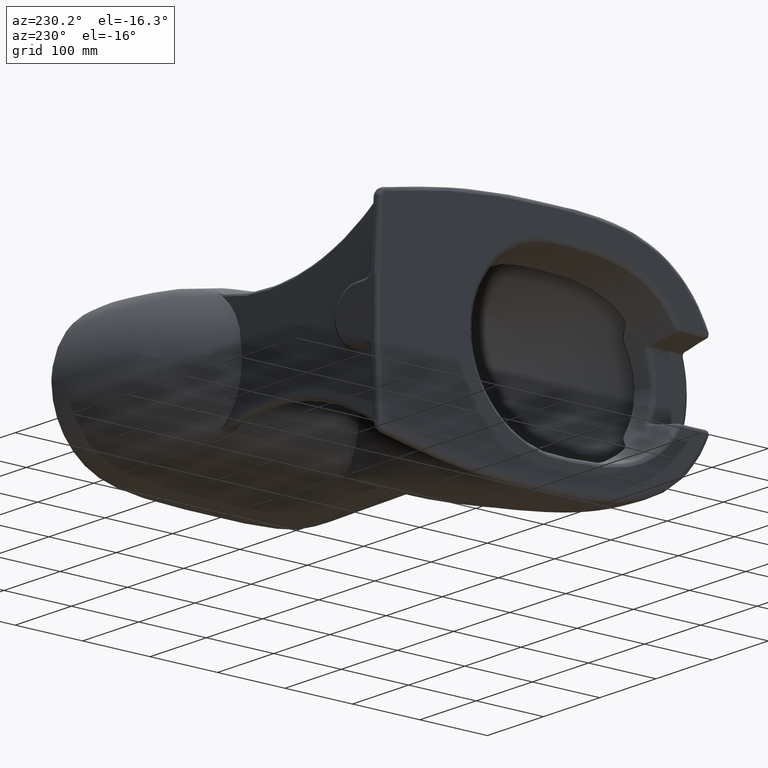
[diagram: clean part render]
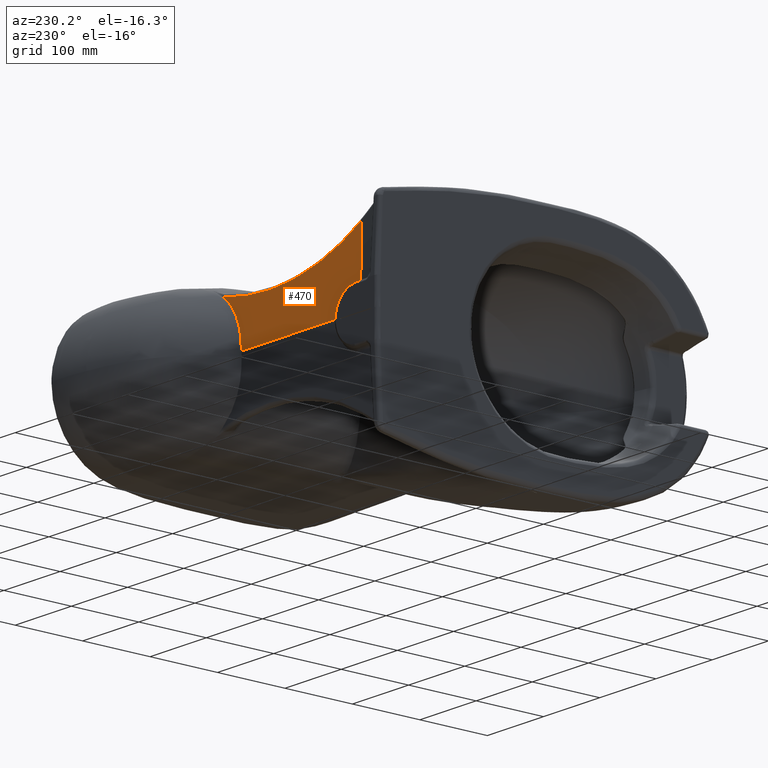
[diagram: same view with one face highlighted and labeled with its STEP entity id]
A machine part, auxiliary view. The second image highlights one B-rep face of the part: STEP entity #470.
In plain terms, the highlighted planar face has unit normal (0, 0.9998, 0.0175).
Its self-contained STEP definition (entity closure, byte-faithful):
#129=PLANE('',#4727);
#169=LINE('',#22949,#220);
#171=LINE('',#25905,#222);
#220=VECTOR('',#4795,1.);
#222=VECTOR('',#4799,1.);
#470=ADVANCED_FACE('',(#946),#129,.T.);
#946=FACE_OUTER_BOUND('',#1243,.T.);
#1243=EDGE_LOOP('',(#1751,#1752,#1753,#1754,#1755,#1756));
#1751=ORIENTED_EDGE('',*,*,#3568,.T.);
#1752=ORIENTED_EDGE('',*,*,#3570,.F.);
#1753=ORIENTED_EDGE('',*,*,#3571,.F.);
#1754=ORIENTED_EDGE('',*,*,#3510,.T.);
#1755=ORIENTED_EDGE('',*,*,#3459,.T.);
#1756=ORIENTED_EDGE('',*,*,#3572,.F.);
#2995=VERTEX_POINT('',#17766);
#2999=VERTEX_POINT('',#17891);
#3032=VERTEX_POINT('',#22950);
#3079=VERTEX_POINT('',#25904);
#3080=VERTEX_POINT('',#25906);
#3081=VERTEX_POINT('',#25922);
#3459=EDGE_CURVE('',#2995,#2999,#4190,.T.);
#3510=EDGE_CURVE('',#3032,#2995,#169,.T.);
#3568=EDGE_CURVE('',#3080,#3079,#171,.T.);
#3570=EDGE_CURVE('',#3081,#3079,#4290,.T.);
#3571=EDGE_CURVE('',#3032,#3081,#4291,.T.);
#3572=EDGE_CURVE('',#3080,#2999,#4292,.T.);
#4190=B_SPLINE_CURVE_WITH_KNOTS('',3,(#17893,#17894,#17895,#17896,#17897,
#17898,#17899,#17900,#17901,#17902,#17903,#17904,#17905,#17906),
 .UNSPECIFIED.,.F.,.F.,(4,2,2,2,2,2,4),(0.,0.25,0.499999999999999,0.624999999999999,
0.687499999999999,0.749999999999999,1.),.UNSPECIFIED.);
#4290=B_SPLINE_CURVE_WITH_KNOTS('',3,(#25912,#25913,#25914,#25915,#25916,
#25917,#25918,#25919,#25920,#25921),.UNSPECIFIED.,.F.,.F.,(4,2,2,2,4),(0.,
0.25,0.5,0.75,1.),.UNSPECIFIED.);
#4291=B_SPLINE_CURVE_WITH_KNOTS('',3,(#25923,#25924,#25925,#25926),
 .UNSPECIFIED.,.F.,.F.,(4,4),(0.,1.),.UNSPECIFIED.);
#4292=B_SPLINE_CURVE_WITH_KNOTS('',3,(#25927,#25928,#25929,#25930,#25931,
#25932,#25933,#25934,#25935,#25936,#25937,#25938,#25939,#25940),
 .UNSPECIFIED.,.F.,.F.,(4,1,1,1,1,1,1,1,1,1,1,4),(0.,0.0590010885592985,
0.118161541450601,0.158836409745205,0.269592759830424,0.381425443861726,
0.509339725498321,0.605875669447375,0.703070853969138,0.801088354097183,
0.899994929203377,1.),.UNSPECIFIED.);
#4727=AXIS2_PLACEMENT_3D('',#25941,#4802,#4803);
#4795=DIRECTION('',(0.,-0.0174524064372837,0.999847695156391));
#4799=DIRECTION('',(-1.,0.,0.));
#4802=DIRECTION('',(0.,0.999847695156391,0.0174524064372836));
#4803=DIRECTION('',(0.,0.0174524064372836,-0.999847695156391));
#17766=CARTESIAN_POINT('',(-434.000705781901,-1.98071434558298,-694.686010868631));
#17891=CARTESIAN_POINT('',(-187.830083627952,-1.35257541668296,-730.431612374871));
#17893=CARTESIAN_POINT('',(-434.000705781625,-1.98071434559087,-694.686010868179));
#17894=CARTESIAN_POINT('',(-415.74181751074,-1.78655932120744,-705.809144765525));
#17895=CARTESIAN_POINT('',(-396.597395491934,-1.62653648659861,-714.97684682031));
#17896=CARTESIAN_POINT('',(-356.33665414286,-1.37350930466226,-729.472764364983));
#17897=CARTESIAN_POINT('',(-335.663230197468,-1.2833772304254,-734.636427439714));
#17898=CARTESIAN_POINT('',(-304.046128285981,-1.20328170028866,-739.225097288043));
#17899=CARTESIAN_POINT('',(-293.486322879723,-1.18587537520779,-740.222304984059));
#17900=CARTESIAN_POINT('',(-277.615457616692,-1.17370416503354,-740.919593147941));
#17901=CARTESIAN_POINT('',(-272.320393184281,-1.17197037271637,-741.018922043267));
#17902=CARTESIAN_POINT('',(-261.719630084579,-1.17314918246695,-740.951388077886));
#17903=CARTESIAN_POINT('',(-256.455974516182,-1.17602038878496,-740.786896778094));
#17904=CARTESIAN_POINT('',(-229.691735866913,-1.20240611431952,-739.275259574619));
#17905=CARTESIAN_POINT('',(-208.601800856302,-1.26091441850657,-735.923321072662));
#17906=CARTESIAN_POINT('',(-187.83300741535,-1.35682985422641,-730.428329440475));
#22949=CARTESIAN_POINT('',(-434.000705781625,-1.04233497074949,-748.445729247938));
#22950=CARTESIAN_POINT('',(-434.000705781625,-0.744940797537702,-765.483430020452));
#25904=CARTESIAN_POINT('',(-393.800414923284,-0.092627072268164,-802.854458312362));
#25905=CARTESIAN_POINT('',(-310.178350953906,-0.0926270722681639,-802.854458312362));
#25906=CARTESIAN_POINT('',(-222.829426937587,-0.0926270718504319,-802.854458336728));
#25912=CARTESIAN_POINT('',(-433.896235677797,-0.744895986957533,-765.485997216871));
#25913=CARTESIAN_POINT('',(-428.910744237496,-0.740504003224655,-765.737613796411));
#25914=CARTESIAN_POINT('',(-424.039580298055,-0.721059428779171,-766.851592720318));
#25915=CARTESIAN_POINT('',(-414.868804440648,-0.653329410954001,-770.731842842774));
#25916=CARTESIAN_POINT('',(-410.672874004724,-0.605862131546782,-773.45124145873));
#25917=CARTESIAN_POINT('',(-403.375078067842,-0.487197787128737,-780.249517197378));
#25918=CARTESIAN_POINT('',(-400.37899430894,-0.417685050232736,-784.231899227));
#25919=CARTESIAN_POINT('',(-395.84555373849,-0.262263094027833,-793.136017134556));
#25920=CARTESIAN_POINT('',(-394.403819889441,-0.179409965963158,-797.88266966237));
#25921=CARTESIAN_POINT('',(-393.800414923284,-0.0926270722681643,-802.854458312362));
#25922=CARTESIAN_POINT('',(-433.896235718227,-0.744895979864176,-765.485997623249));
#25923=CARTESIAN_POINT('',(-434.000705781625,-0.744895965650551,-765.485998437547));
#25924=CARTESIAN_POINT('',(-433.965882443914,-0.744895965650551,-765.485998437547));
#25925=CARTESIAN_POINT('',(-433.931059106203,-0.744895965650551,-765.485998437547));
#25926=CARTESIAN_POINT('',(-433.896235768492,-0.744895965650551,-765.485998437547));
#25927=CARTESIAN_POINT('',(-222.829426936873,-0.0926270722681941,-802.854458312362));
#25928=CARTESIAN_POINT('',(-222.760119201481,-0.113525279066052,-801.21464750025));
#25929=CARTESIAN_POINT('',(-222.621316527694,-0.155378139565506,-797.930596680548));
#25930=CARTESIAN_POINT('',(-222.247784802114,-0.259868070616684,-793.527243163945));
#25931=CARTESIAN_POINT('',(-221.537572150579,-0.36695075169508,-787.713014546328));
#25932=CARTESIAN_POINT('',(-220.34389140448,-0.491327554377204,-780.481301559531));
#25933=CARTESIAN_POINT('',(-217.844591706721,-0.635879050618784,-771.035696626432));
#25934=CARTESIAN_POINT('',(-214.269848856517,-0.814018682407657,-762.363145511453));
#25935=CARTESIAN_POINT('',(-210.038315288599,-0.936992233067941,-754.465763979811));
#25936=CARTESIAN_POINT('',(-205.424004837971,-1.05062175570383,-747.770106163605));
#25937=CARTESIAN_POINT('',(-200.170414811238,-1.1543643220747,-741.489088814766));
#25938=CARTESIAN_POINT('',(-194.346058672564,-1.2508587352927,-735.607098633127));
#25939=CARTESIAN_POINT('',(-190.008706250059,-1.31508267285323,-732.165185265477));
#25940=CARTESIAN_POINT('',(-187.82805345764,-1.34737198097005,-730.434724545365));
#25941=CARTESIAN_POINT('',(-186.355996126186,-1.99204286923081,-694.037000183514));